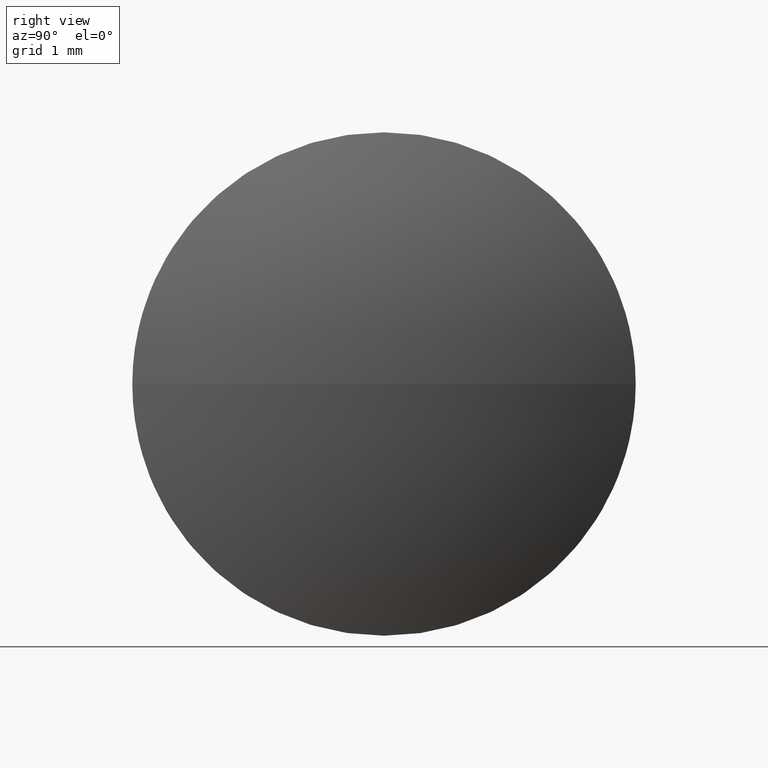
[diagram: clean part render]
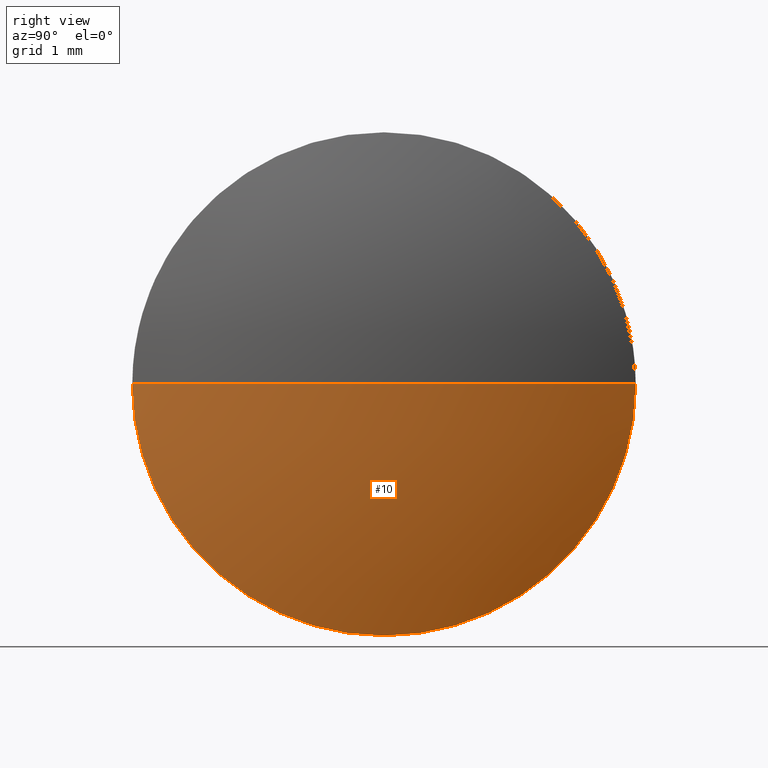
[diagram: same view with one face highlighted and labeled with its STEP entity id]
A machine part, right view. The second image highlights one B-rep face of the part: STEP entity #10.
In plain terms, the highlighted spherical surface has radius 8.312 mm.
Its self-contained STEP definition (entity closure, byte-faithful):
#6 = ORIENTED_EDGE ( 'NONE', *, *, #31, .F. ) ;
#10 = ADVANCED_FACE ( 'NONE', ( #175 ), #127, .T. ) ;
#14 = VERTEX_POINT ( 'NONE', #141 ) ;
#15 = DIRECTION ( 'NONE',  ( 0.0000000000000000000, 1.000000000000000000, 0.0000000000000000000 ) ) ;
#24 = ORIENTED_EDGE ( 'NONE', *, *, #152, .T. ) ;
#30 = EDGE_LOOP ( 'NONE', ( #154, #24, #124, #6 ) ) ;
#31 = EDGE_CURVE ( 'NONE', #111, #14, #46, .T. ) ;
#32 = CIRCLE ( 'NONE', #59, 8.312016129032207000 ) ;
#38 = DIRECTION ( 'NONE',  ( 1.000000000000000000, 0.0000000000000000000, 0.0000000000000000000 ) ) ;
#40 = AXIS2_PLACEMENT_3D ( 'NONE', #144, #101, #145 ) ;
#46 = CIRCLE ( 'NONE', #40, 3.149999999999986100 ) ;
#56 = AXIS2_PLACEMENT_3D ( 'NONE', #184, #97, #15 ) ;
#57 = CIRCLE ( 'NONE', #186, 8.312016129032235400 ) ;
#59 = AXIS2_PLACEMENT_3D ( 'NONE', #160, #89, #38 ) ;
#72 = DIRECTION ( 'NONE',  ( -1.000000000000000000, -0.0000000000000000000, -0.0000000000000000000 ) ) ;
#73 = DIRECTION ( 'NONE',  ( 0.0000000000000000000, 0.0000000000000000000, 1.000000000000000000 ) ) ;
#78 = DIRECTION ( 'NONE',  ( 0.0000000000000000000, 1.224646799147353200E-016, -1.000000000000000000 ) ) ;
#82 = VERTEX_POINT ( 'NONE', #168 ) ;
#85 = VERTEX_POINT ( 'NONE', #129 ) ;
#89 = DIRECTION ( 'NONE',  ( -0.0000000000000000000, 0.0000000000000000000, 1.000000000000000000 ) ) ;
#90 = DIRECTION ( 'NONE',  ( 0.0000000000000000000, 1.000000000000000000, 1.224646799147353000E-016 ) ) ;
#97 = DIRECTION ( 'NONE',  ( -0.0000000000000000000, 0.0000000000000000000, -1.000000000000000000 ) ) ;
#101 = DIRECTION ( 'NONE',  ( -1.000000000000000000, -0.0000000000000000000, -0.0000000000000000000 ) ) ;
#105 = EDGE_CURVE ( 'NONE', #14, #82, #167, .T. ) ;
#111 = VERTEX_POINT ( 'NONE', #170 ) ;
#119 = CARTESIAN_POINT ( 'NONE',  ( 508.9042595871206900, 138.9246211176667000, 0.0000000000000000000 ) ) ;
#124 = ORIENTED_EDGE ( 'NONE', *, *, #105, .F. ) ;
#127 = SPHERICAL_SURFACE ( 'NONE', #56, 8.312016129032233600 ) ;
#129 = CARTESIAN_POINT ( 'NONE',  ( 517.2162757161529500, 138.9246211176667000, 0.0000000000000000000 ) ) ;
#141 = CARTESIAN_POINT ( 'NONE',  ( 516.5962757161529500, 138.9246211176667300, -3.149999999999986100 ) ) ;
#144 = CARTESIAN_POINT ( 'NONE',  ( 516.5962757161529500, 138.9246211176667300, 0.0000000000000000000 ) ) ;
#145 = DIRECTION ( 'NONE',  ( 0.0000000000000000000, 0.0000000000000000000, 1.000000000000000000 ) ) ;
#152 = EDGE_CURVE ( 'NONE', #85, #82, #57, .T. ) ;
#154 = ORIENTED_EDGE ( 'NONE', *, *, #165, .F. ) ;
#160 = CARTESIAN_POINT ( 'NONE',  ( 508.9042595871206900, 138.9246211176667000, 0.0000000000000000000 ) ) ;
#165 = EDGE_CURVE ( 'NONE', #85, #111, #32, .T. ) ;
#167 = CIRCLE ( 'NONE', #177, 3.149999999999986100 ) ;
#168 = CARTESIAN_POINT ( 'NONE',  ( 516.5962757161529500, 135.7746211176667500, -3.857637417314106500E-016 ) ) ;
#170 = CARTESIAN_POINT ( 'NONE',  ( 516.5962757161529500, 142.0746211176666800, 0.0000000000000000000 ) ) ;
#175 = FACE_OUTER_BOUND ( 'NONE', #30, .T. ) ;
#177 = AXIS2_PLACEMENT_3D ( 'NONE', #185, #72, #73 ) ;
#184 = CARTESIAN_POINT ( 'NONE',  ( 508.9042595871206900, 138.9246211176667000, 0.0000000000000000000 ) ) ;
#185 = CARTESIAN_POINT ( 'NONE',  ( 516.5962757161529500, 138.9246211176667300, 0.0000000000000000000 ) ) ;
#186 = AXIS2_PLACEMENT_3D ( 'NONE', #119, #78, #90 ) ;